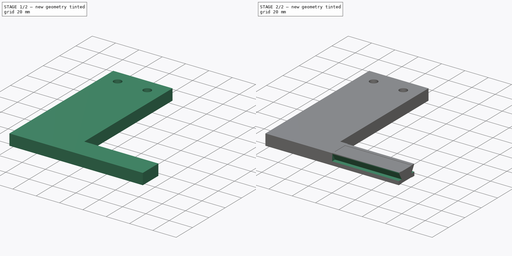
[diagram: build sequence overview — one tinted view per stage of 2, left to right]
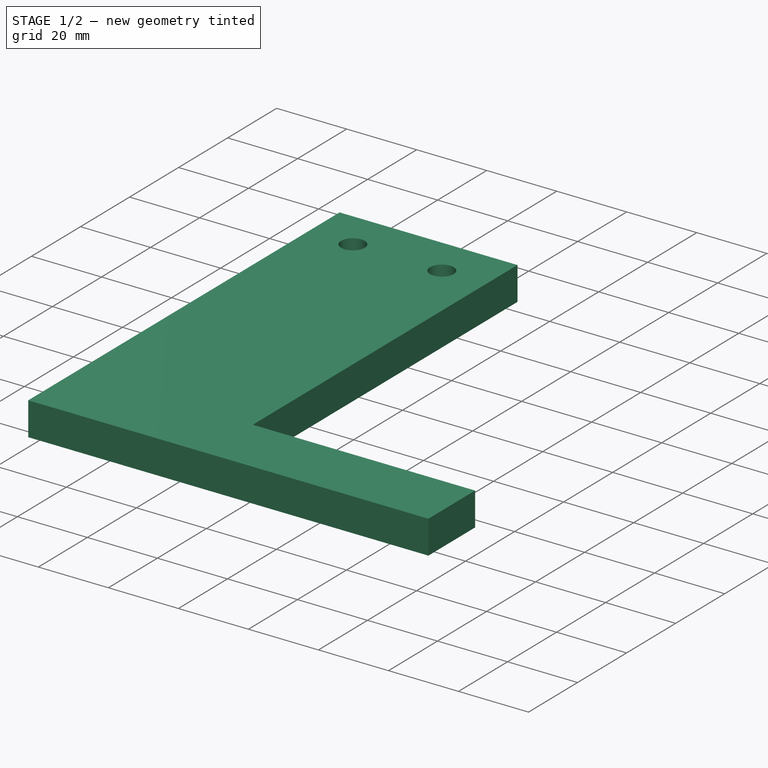
[diagram: stage 1 of 2 — iso view after this stage's code; geometry added in this stage tinted green]
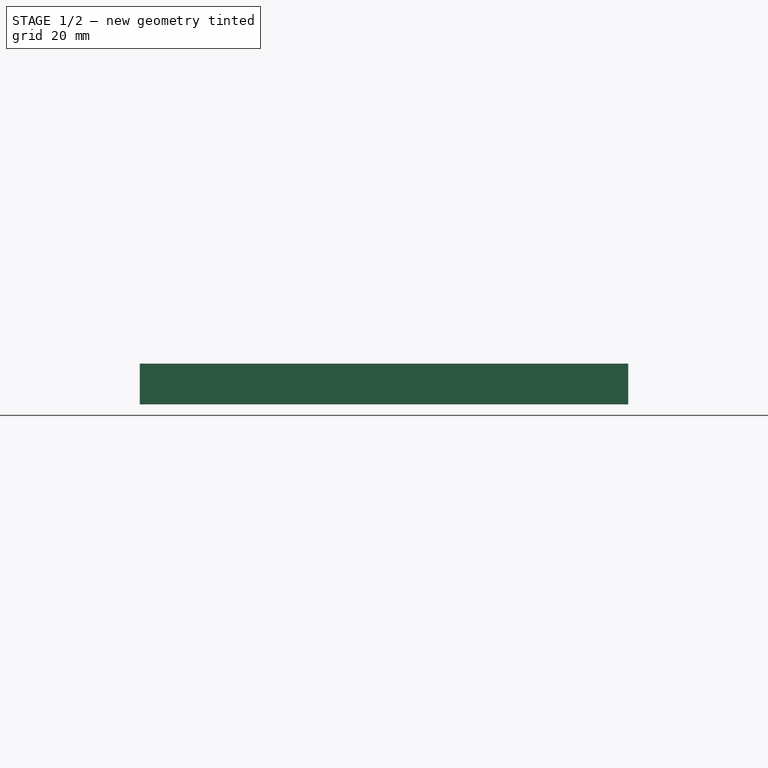
[diagram: stage 1 of 2 — front view after this stage's code; geometry added in this stage tinted green]
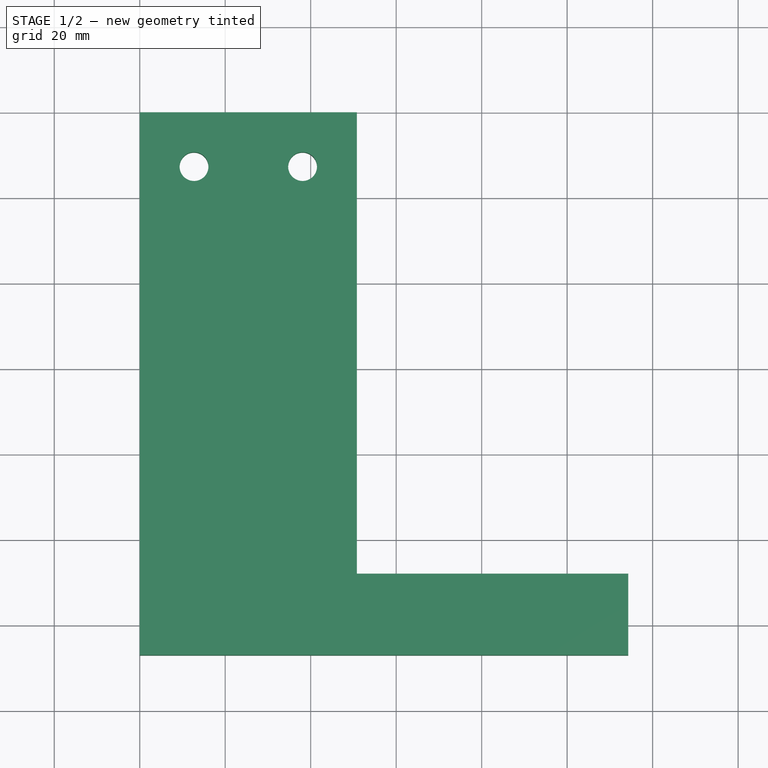
[diagram: stage 1 of 2 — top view after this stage's code; geometry added in this stage tinted green]
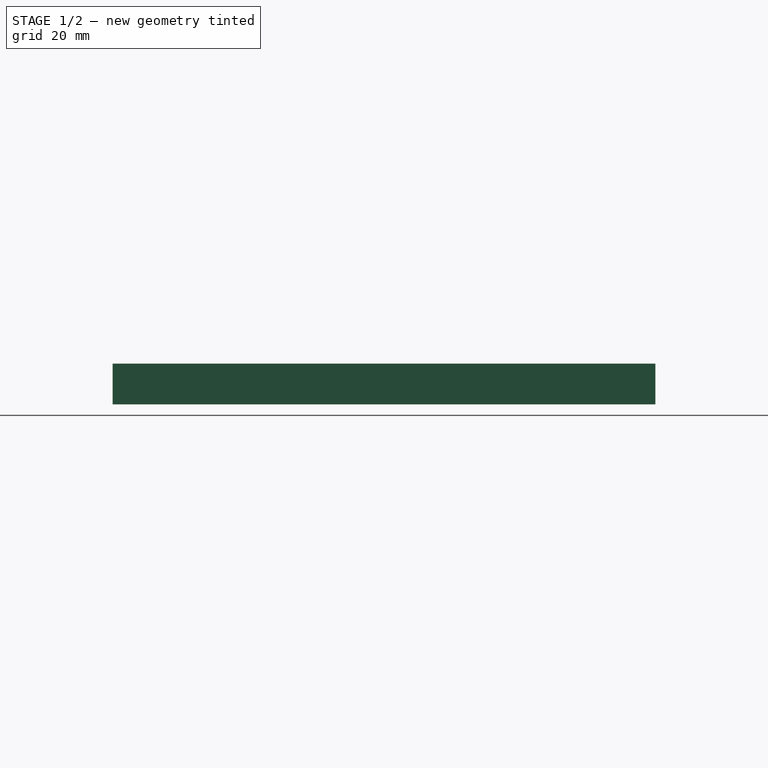
[diagram: stage 1 of 2 — right view after this stage's code; geometry added in this stage tinted green]
FCSTD DOCUMENT  (FreeCAD 0.18R16110 (Git))
Label: Headfixing assembly bespoke
License: All rights reserved
LicenseURL: http://en.wikipedia.org/wiki/All_rights_reserved
objects: Sketcher::SketchObject×2, PartDesign::Pad×1, PartDesign::Pocket×1, PartDesign::Body×1
note: 7 computed .brp shape members not serialized (recipe doc carries the construction recipe); baked Part::Feature solids carry a one-line shape summary decoded from their .brp

FEATURE [Sketcher::SketchObject] Sketch
  expr: Constraints[15] = 17" / 64 / 2
  sketch-geometry (8):
    g0: LineSegment StartX=50.8 StartY=0 StartZ=0 EndX=0 EndY=0 EndZ=0
    g1: LineSegment StartX=0 StartY=0 StartZ=0 EndX=0 EndY=-127 EndZ=0
    g2: LineSegment StartX=0 StartY=-127 StartZ=0 EndX=114.3 EndY=-127 EndZ=0
    g3: LineSegment StartX=114.3 StartY=-127 StartZ=0 EndX=114.3 EndY=-107.95 EndZ=0
    g4: LineSegment StartX=114.3 StartY=-107.95 StartZ=0 EndX=50.8 EndY=-107.95 EndZ=0
    g5: LineSegment StartX=50.8 StartY=-107.95 StartZ=0 EndX=50.8 EndY=0 EndZ=0
    g6: Circle CenterX=12.7 CenterY=-12.7 CenterZ=0 NormalX=0 NormalY=0 NormalZ=1 AngleXU=0 Radius=3.37344
    g7: Circle CenterX=38.1 CenterY=-12.7 CenterZ=0 NormalX=0 NormalY=0 NormalZ=1 AngleXU=0 Radius=3.37344
  constraints (23):
    c: Coincident(g0,g1)
    c: Coincident(g1,g2)
    c: Coincident(g2,g3)
    c: Coincident(g3,g4)
    c: Coincident(g4,g5)
    c: Coincident(g0,g5)
    c: Coincident(g0,g-1)
    c: Horizontal(g0)
    c: Horizontal(g4)
    c: Horizontal(g2)
    c: Vertical(g3)
    c: Vertical(g5)
    c: Vertical(g1)
    c: DistanceY(g3,g3) = 19.05
    c: Equal(g6,g7)
    c: Radius(g6) = 3.37344
    c: DistanceY(g6,g7) = 0
    c: DistanceX(g6,g7) = 25.4
    c: DistanceX(g6) = 12.7
    c: DistanceX(g7,g0) = 12.7
    c: DistanceY(g1,g1) = 127
    c: DistanceX(g2,g2) = 114.3
    c: DistanceY(g6) = -12.7
FEATURE [PartDesign::Pad] Pad
  Length = 9.525
  Length2 = 99.9998
  Profile = -> Sketch
  Type = 0
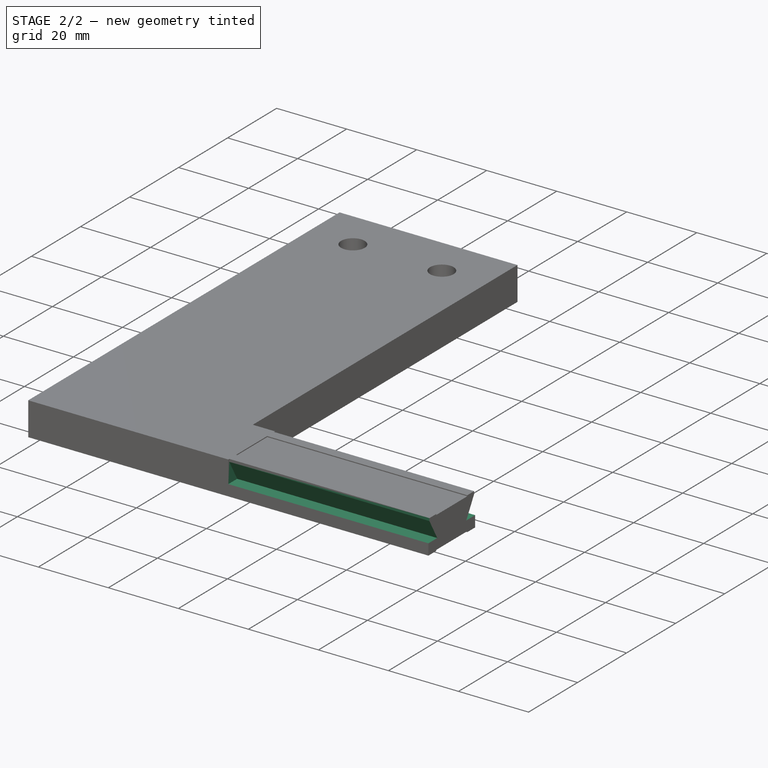
[diagram: stage 2 of 2 — iso view after this stage's code; geometry added in this stage tinted green]
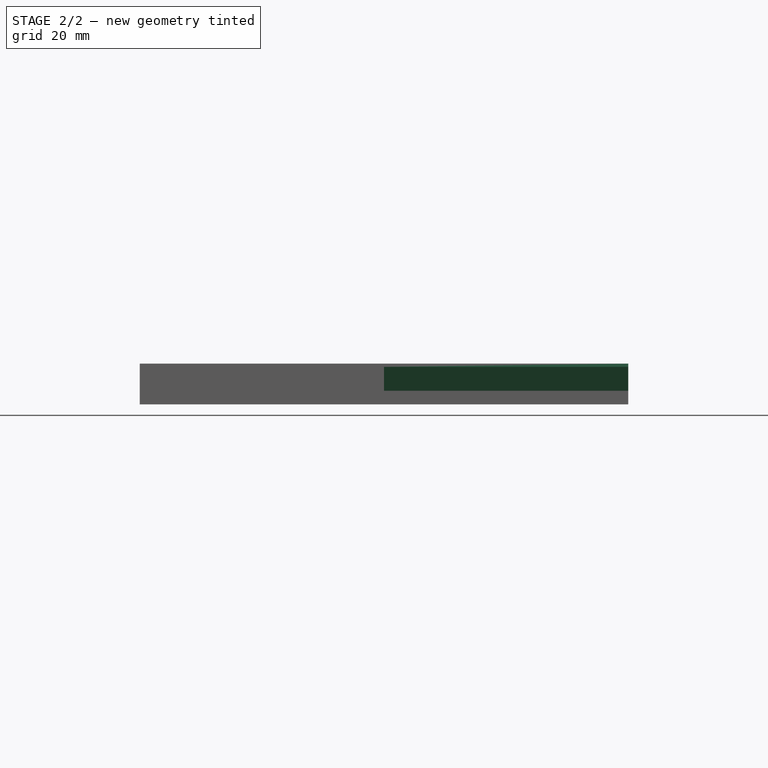
[diagram: stage 2 of 2 — front view after this stage's code; geometry added in this stage tinted green]
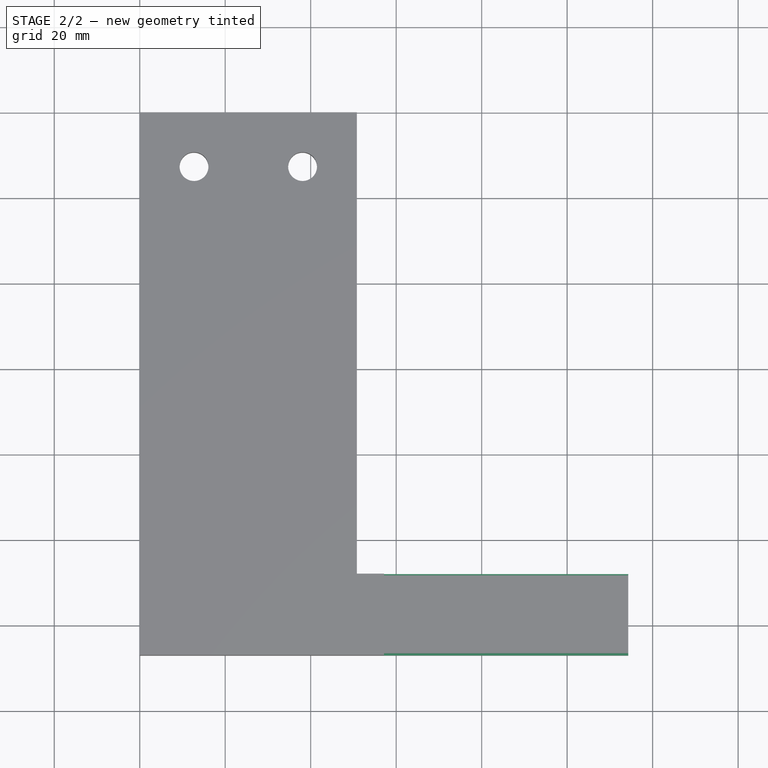
[diagram: stage 2 of 2 — top view after this stage's code; geometry added in this stage tinted green]
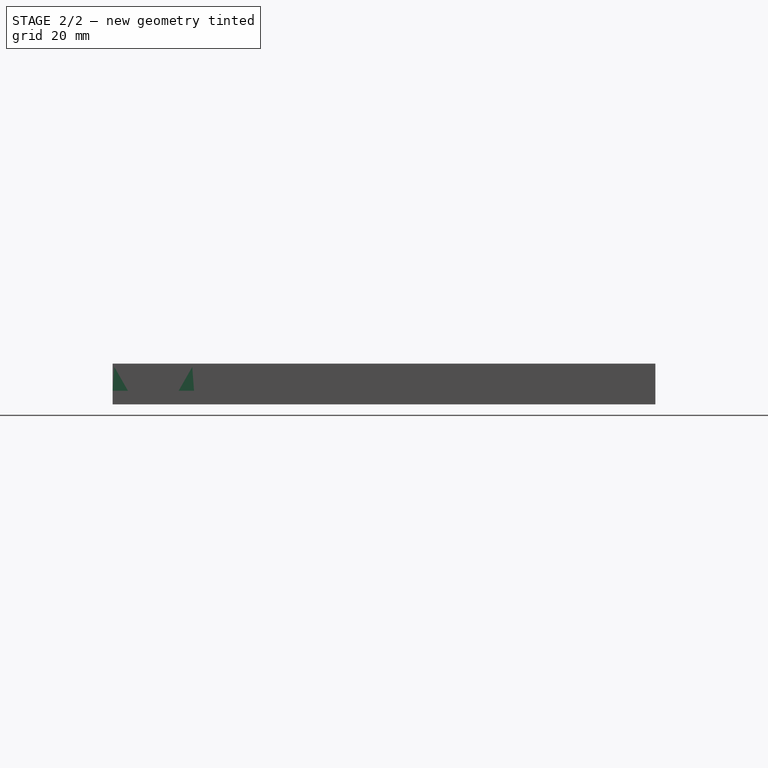
[diagram: stage 2 of 2 — right view after this stage's code; geometry added in this stage tinted green]
FEATURE [Sketcher::SketchObject] Sketch001
  MapMode = 5
  Placement = pos=(114.3,0,0) rot=(0.57735,0.57735,0.57735;2.0944rad)
  expr: Constraints[9] = -5" + 0.75" / 2
  sketch-geometry (19):
    g0: LineSegment StartX=-126.594 StartY=8.763 StartZ=0 EndX=-123.401 EndY=3.175 EndZ=0
    g1: LineSegment StartX=-123.401 StartY=3.175 StartZ=0 EndX=-127 EndY=3.175 EndZ=0
    g2: LineSegment StartX=-127 StartY=3.175 StartZ=0 EndX=-127 EndY=12.7 EndZ=0
    g3: LineSegment StartX=-107.95 StartY=12.7 StartZ=0 EndX=-107.95 EndY=3.175 EndZ=0
    g4: LineSegment StartX=-107.95 StartY=3.175 StartZ=0 EndX=-111.549 EndY=3.175 EndZ=0
    g5: LineSegment StartX=-111.549 StartY=3.175 StartZ=0 EndX=-108.356 EndY=8.763 EndZ=0
    g6: LineSegment StartX=-123.8 StartY=0 StartZ=0 EndX=-123.8 EndY=0.254 EndZ=0
    g7: LineSegment StartX=-123.8 StartY=0.254 StartZ=0 EndX=-111.15 EndY=0.254 EndZ=0
    g8: LineSegment StartX=-111.15 StartY=0.254 StartZ=0 EndX=-111.15 EndY=0 EndZ=0
    g9: LineSegment StartX=-111.15 StartY=0 StartZ=0 EndX=-123.8 EndY=0 EndZ=0
    g10: LineSegment [constr] StartX=-117.475 StartY=12.7 StartZ=0 EndX=-117.475 EndY=-3.175 EndZ=0
    g11: LineSegment StartX=-126.594 StartY=8.763 StartZ=0 EndX=-126.594 EndY=9.525 EndZ=0
    g12: LineSegment StartX=-123.8 StartY=9.525 StartZ=0 EndX=-123.8 EndY=9.271 EndZ=0
    g13: LineSegment StartX=-123.8 StartY=9.271 StartZ=0 EndX=-111.15 EndY=9.271 EndZ=0
    g14: LineSegment StartX=-111.15 StartY=9.271 StartZ=0 EndX=-111.15 EndY=9.525 EndZ=0
    g15: LineSegment StartX=-108.356 StartY=9.525 StartZ=0 EndX=-108.356 EndY=8.763 EndZ=0
    g16: LineSegment StartX=-126.594 StartY=9.525 StartZ=0 EndX=-123.8 EndY=9.525 EndZ=0
    g17: LineSegment StartX=-111.15 StartY=9.525 StartZ=0 EndX=-108.356 EndY=9.525 EndZ=0
    g18: LineSegment StartX=-127 StartY=12.7 StartZ=0 EndX=-107.95 EndY=12.7 EndZ=0
  constraints (49):
    c: Coincident(g0,g1)
    c: Coincident(g1,g2)
    c: Coincident(g3,g4)
    c: Coincident(g4,g5)
    c: Coincident(g6,g7)
    c: Coincident(g7,g8)
    c: Coincident(g8,g9)
    c: Coincident(g6,g9)
    c: Vertical(g10)
    c: DistanceX(g10) = -117.475
    c: DistanceY(g10) = 12.7
    c: DistanceY(g10) = -3.175
    c: Coincident(g12,g13)
    c: Coincident(g13,g14)
    c: Coincident(g0,g11)
    c: Coincident(g5,g15)
    c: Symmetric(g2,g3,g10)
    c: Symmetric(g1,g3,g10)
    c: Symmetric(g4,g0,g10)
    c: Symmetric(g0,g5,g10)
    c: Symmetric(g15,g11,g10)
    c: Symmetric(g12,g14,g10)
    c: Symmetric(g12,g13,g10)
    c: Symmetric(g6,g7,g10)
    c: Symmetric(g8,g6,g10)
    c: DistanceY(g2) = 12.7
    c: DistanceX(g2,g10) = 9.525
    c: DistanceY(g1) = 3.175
    c: DistanceY(g1,g0) = 5.588
    c: Coincident(g2,g18)
    c: Coincident(g3,g18)
    c: Coincident(g11,g16)
    c: Coincident(g12,g16)
    c: Coincident(g14,g17)
    c: Coincident(g15,g17)
    c: DistanceY(g11) = 9.525
    c: Horizontal(g16)
    c: Vertical(g12)
    c: Vertical(g11)
    c: Horizontal(g1)
    c: DistanceX(g0,g0) = 3.19278
    c: DistanceX(g2,g11) = 0.4064
    c: Vertical(g6)
    c: DistanceY(g6) = 0
    c: DistanceY(g6,g6) = 0.254
    c: Vertical(g2)
    c: DistanceX(g1,g6) = 3.2004
    c: DistanceX(g12,g10) = 6.3246
    c: DistanceY(g12,g12) = 0.254
FEATURE [PartDesign::Pocket] Pocket
  BaseFeature = -> Pad
  Length = 57.15
  Length2 = 99.9998
  Profile = -> Sketch001
  Type = 0
FEATURE [PartDesign::Body] Body
  Group = -> [Sketch,Pad,Sketch001,Pocket]
  Origin = -> Origin
  Tip = -> Pocket
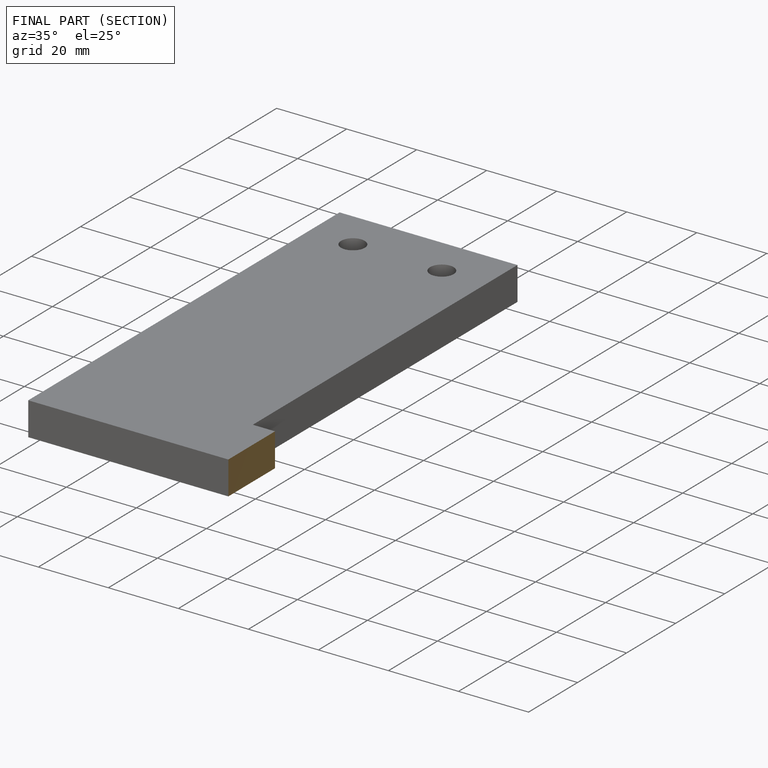
[diagram: finished part — half-section view (interior)]
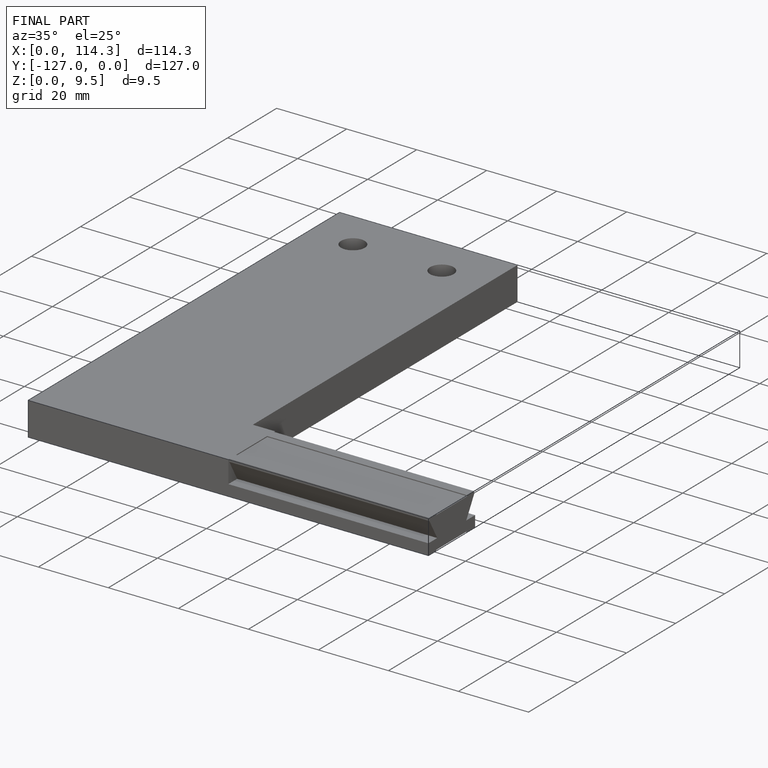
[diagram: finished part — iso view with bounding-box wireframe]
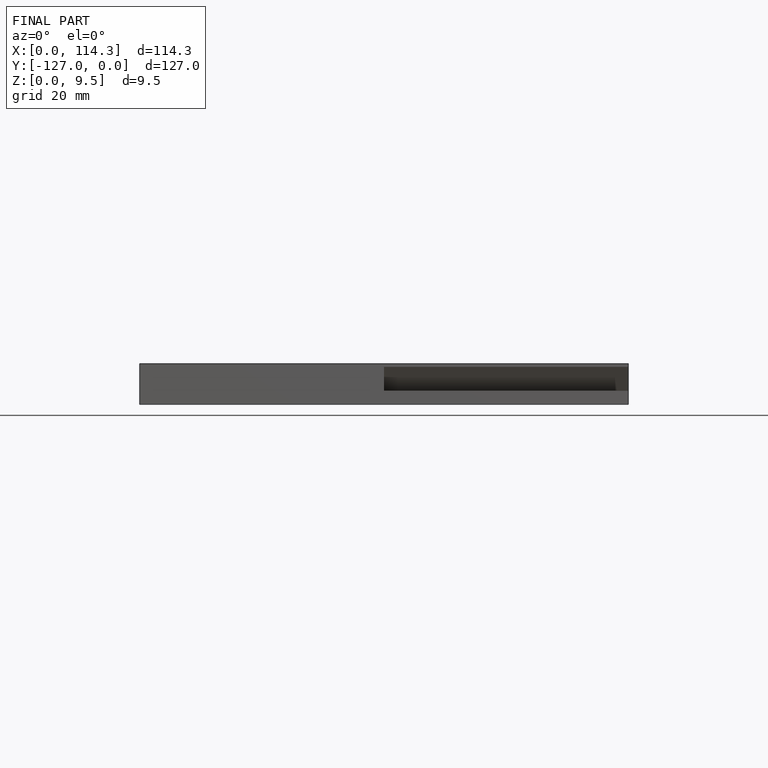
[diagram: finished part — front view with bounding-box wireframe]
